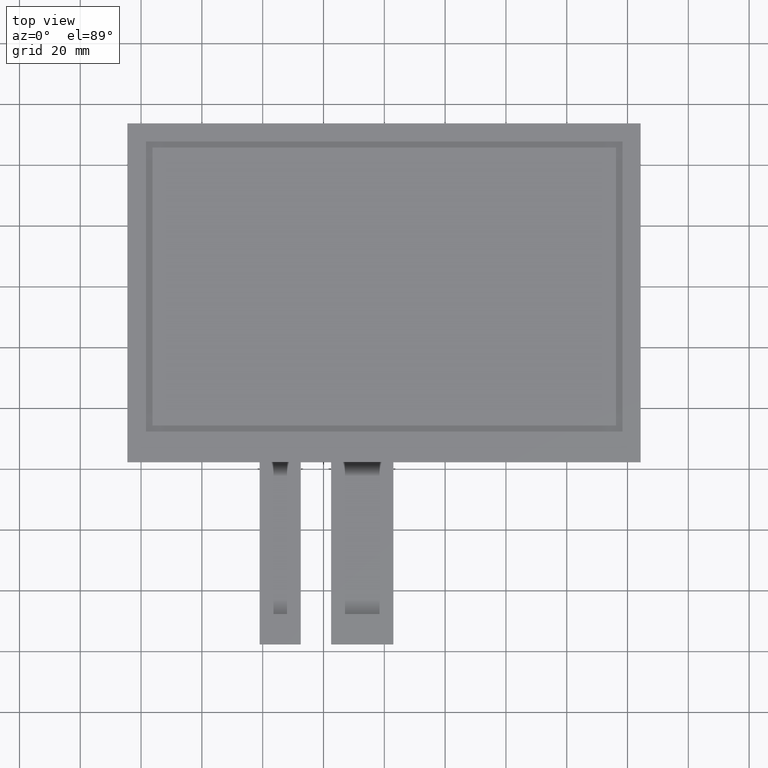
[diagram: clean part render]
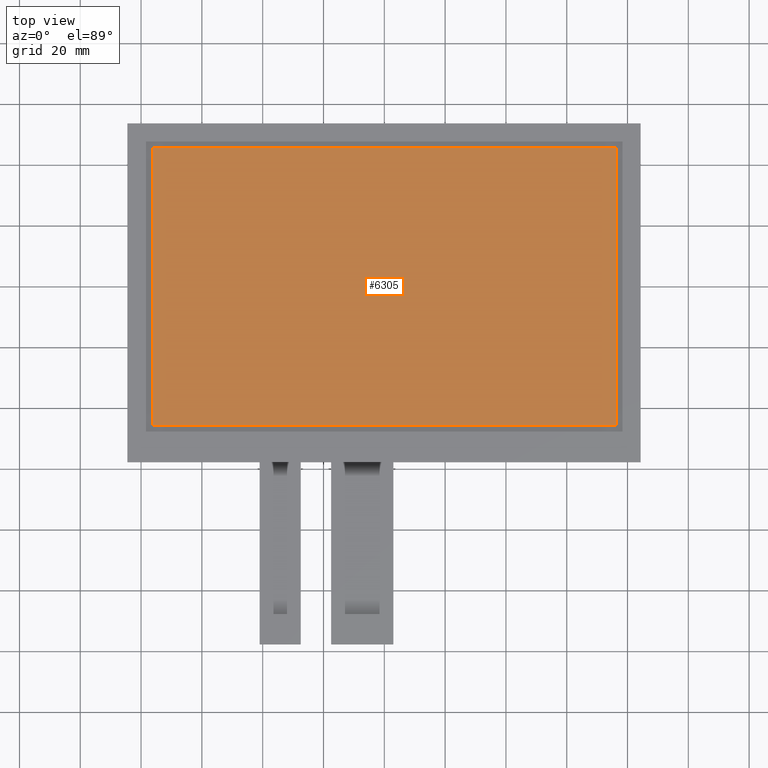
[diagram: same view with one face highlighted and labeled with its STEP entity id]
A machine part, top view. The second image highlights one B-rep face of the part: STEP entity #6305.
In plain terms, the highlighted planar face has unit normal (0, 0, 1).
Its self-contained STEP definition (entity closure, byte-faithful):
#367=PLANE('',#6635);
#669=FACE_OUTER_BOUND('',#975,.T.);
#975=EDGE_LOOP('',(#5993,#5994,#5995,#5996));
#1821=LINE('',#9849,#2701);
#1825=LINE('',#9857,#2705);
#1828=LINE('',#9863,#2708);
#1831=LINE('',#9868,#2711);
#2701=VECTOR('',#8073,10.);
#2705=VECTOR('',#8079,10.);
#2708=VECTOR('',#8084,10.);
#2711=VECTOR('',#8089,10.);
#3313=VERTEX_POINT('',#9847);
#3314=VERTEX_POINT('',#9848);
#3317=VERTEX_POINT('',#9856);
#3319=VERTEX_POINT('',#9862);
#4189=EDGE_CURVE('',#3313,#3314,#1821,.T.);
#4193=EDGE_CURVE('',#3317,#3313,#1825,.T.);
#4196=EDGE_CURVE('',#3319,#3317,#1828,.T.);
#4199=EDGE_CURVE('',#3314,#3319,#1831,.T.);
#5993=ORIENTED_EDGE('',*,*,#4189,.T.);
#5994=ORIENTED_EDGE('',*,*,#4199,.T.);
#5995=ORIENTED_EDGE('',*,*,#4196,.T.);
#5996=ORIENTED_EDGE('',*,*,#4193,.T.);
#6305=ADVANCED_FACE('',(#669),#367,.T.);
#6635=AXIS2_PLACEMENT_3D('',#9920,#8135,#8136);
#8073=DIRECTION('',(1.,1.16558847729675E-16,0.));
#8079=DIRECTION('',(0.,-1.,0.));
#8084=DIRECTION('',(-1.,1.16558847729675E-16,0.));
#8089=DIRECTION('',(0.,1.,0.));
#8135=DIRECTION('center_axis',(0.,0.,1.));
#8136=DIRECTION('ref_axis',(1.,0.,0.));
#9847=CARTESIAN_POINT('',(-76.2,-45.72,0.));
#9848=CARTESIAN_POINT('',(76.2,-45.72,0.));
#9849=CARTESIAN_POINT('',(-38.15,-45.72,0.));
#9856=CARTESIAN_POINT('',(-76.2,45.72,0.));
#9857=CARTESIAN_POINT('',(-76.2,21.85,0.));
#9862=CARTESIAN_POINT('',(76.2,45.72,0.));
#9863=CARTESIAN_POINT('',(38.05,45.72,0.));
#9868=CARTESIAN_POINT('',(76.2,-23.87,0.));
#9920=CARTESIAN_POINT('Origin',(-0.100000000000025,-2.02000000000001,0.));